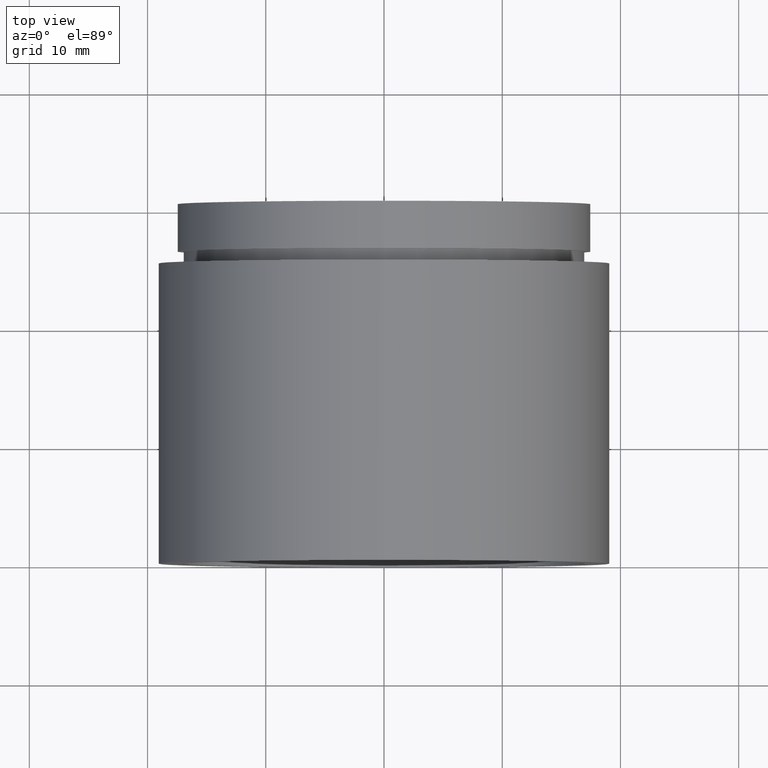
[diagram: clean part render]
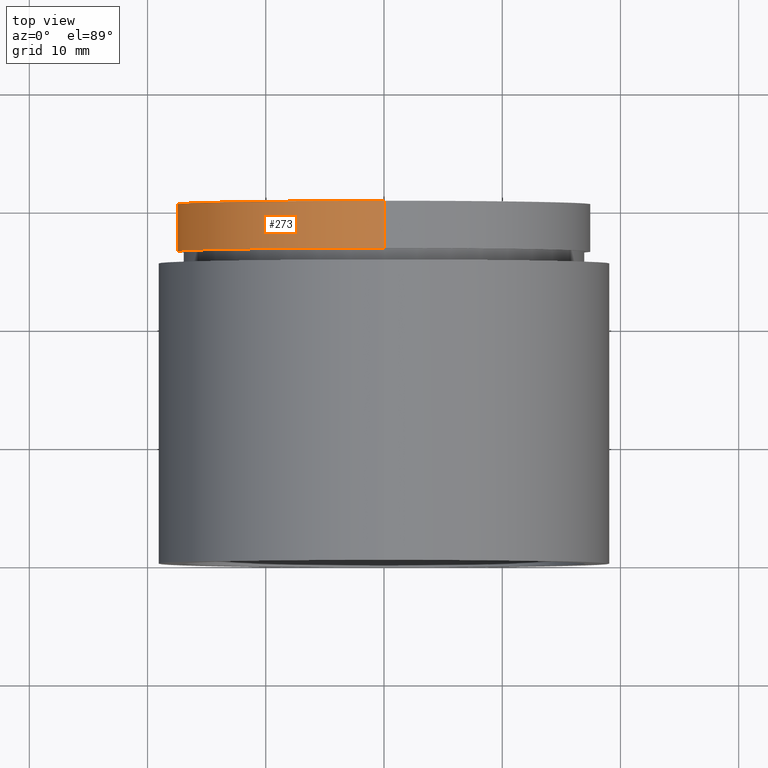
[diagram: same view with one face highlighted and labeled with its STEP entity id]
A machine part, top view. The second image highlights one B-rep face of the part: STEP entity #273.
In plain terms, the highlighted cylindrical surface (partial cylindrical patch) has radius 17.5 mm, axis along (-0, 1, -0).
Its self-contained STEP definition (entity closure, byte-faithful):
#30 = FACE_OUTER_BOUND ( 'NONE', #282, .T. ) ;
#46 = ORIENTED_EDGE ( 'NONE', *, *, #476, .F. ) ;
#62 = VERTEX_POINT ( 'NONE', #361 ) ;
#68 = CARTESIAN_POINT ( 'NONE',  ( 0.0000000000000000000, 26.39999999999997700, 17.50000000000002500 ) ) ;
#83 = DIRECTION ( 'NONE',  ( -0.0000000000000000000, 1.000000000000000000, -0.0000000000000000000 ) ) ;
#91 = ORIENTED_EDGE ( 'NONE', *, *, #128, .T. ) ;
#128 = EDGE_CURVE ( 'NONE', #497, #596, #616, .T. ) ;
#168 = VECTOR ( 'NONE', #261, 1000.000000000000000 ) ;
#180 = CARTESIAN_POINT ( 'NONE',  ( 0.0000000000000000000, 26.39999999999997700, 0.0000000000000000000 ) ) ;
#184 = VERTEX_POINT ( 'NONE', #377 ) ;
#192 = CARTESIAN_POINT ( 'NONE',  ( 0.0000000000000000000, 161.3761669434274500, 0.0000000000000000000 ) ) ;
#195 = EDGE_CURVE ( 'NONE', #62, #497, #457, .T. ) ;
#221 = AXIS2_PLACEMENT_3D ( 'NONE', #192, #234, #473 ) ;
#228 = DIRECTION ( 'NONE',  ( 0.0000000000000000000, 0.0000000000000000000, 1.000000000000000000 ) ) ;
#234 = DIRECTION ( 'NONE',  ( -0.0000000000000000000, 1.000000000000000000, -0.0000000000000000000 ) ) ;
#242 = ORIENTED_EDGE ( 'NONE', *, *, #195, .T. ) ;
#261 = DIRECTION ( 'NONE',  ( -0.0000000000000000000, 1.000000000000000000, -0.0000000000000000000 ) ) ;
#273 = ADVANCED_FACE ( 'NONE', ( #30 ), #561, .T. ) ;
#279 = CARTESIAN_POINT ( 'NONE',  ( 0.0000000000000000000, 30.39999999999998400, 0.0000000000000000000 ) ) ;
#282 = EDGE_LOOP ( 'NONE', ( #46, #242, #91, #347 ) ) ;
#289 = AXIS2_PLACEMENT_3D ( 'NONE', #279, #83, #228 ) ;
#347 = ORIENTED_EDGE ( 'NONE', *, *, #599, .F. ) ;
#361 = CARTESIAN_POINT ( 'NONE',  ( 2.143131898507871400E-015, 26.39999999999997700, -17.50000000000002500 ) ) ;
#377 = CARTESIAN_POINT ( 'NONE',  ( 2.143131898507871400E-015, 30.39999999999998400, -17.50000000000002500 ) ) ;
#383 = CARTESIAN_POINT ( 'NONE',  ( 0.0000000000000000000, 161.3761669434274500, 17.50000000000002500 ) ) ;
#390 = DIRECTION ( 'NONE',  ( -0.0000000000000000000, 1.000000000000000000, -0.0000000000000000000 ) ) ;
#457 = CIRCLE ( 'NONE', #528, 17.50000000000002500 ) ;
#464 = LINE ( 'NONE', #595, #168 ) ;
#466 = CIRCLE ( 'NONE', #289, 17.50000000000002500 ) ;
#467 = CARTESIAN_POINT ( 'NONE',  ( 0.0000000000000000000, 30.39999999999998400, 17.50000000000002500 ) ) ;
#468 = DIRECTION ( 'NONE',  ( -0.0000000000000000000, 1.000000000000000000, -0.0000000000000000000 ) ) ;
#473 = DIRECTION ( 'NONE',  ( 0.0000000000000000000, 0.0000000000000000000, 1.000000000000000000 ) ) ;
#476 = EDGE_CURVE ( 'NONE', #62, #184, #464, .T. ) ;
#497 = VERTEX_POINT ( 'NONE', #68 ) ;
#501 = DIRECTION ( 'NONE',  ( 0.0000000000000000000, 0.0000000000000000000, 1.000000000000000000 ) ) ;
#528 = AXIS2_PLACEMENT_3D ( 'NONE', #180, #468, #501 ) ;
#561 = CYLINDRICAL_SURFACE ( 'NONE', #221, 17.50000000000002500 ) ;
#595 = CARTESIAN_POINT ( 'NONE',  ( 2.143131898507871400E-015, 161.3761669434274500, -17.50000000000002500 ) ) ;
#596 = VERTEX_POINT ( 'NONE', #467 ) ;
#599 = EDGE_CURVE ( 'NONE', #184, #596, #466, .T. ) ;
#606 = VECTOR ( 'NONE', #390, 1000.000000000000000 ) ;
#616 = LINE ( 'NONE', #383, #606 ) ;